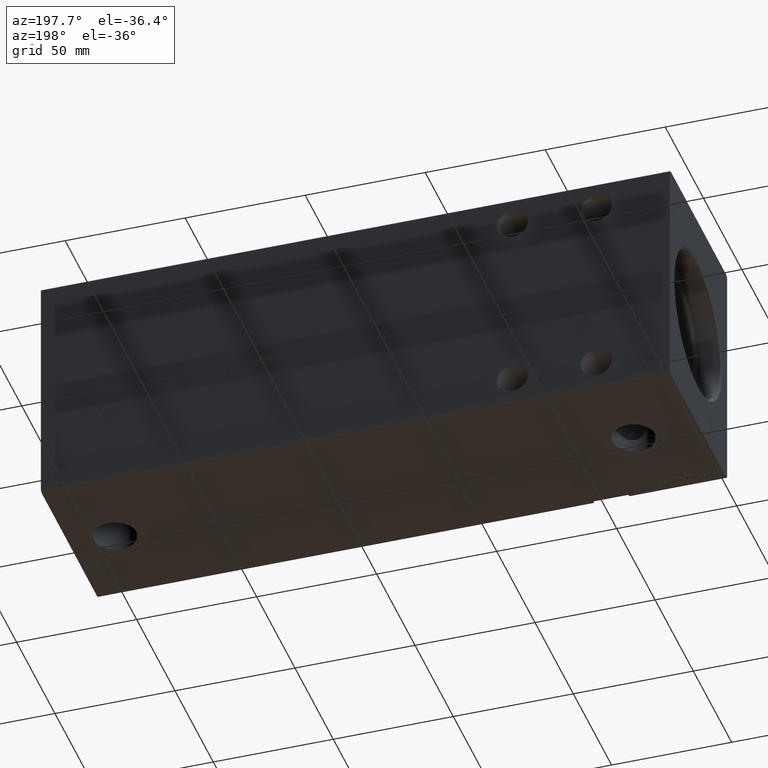
[diagram: clean part render]
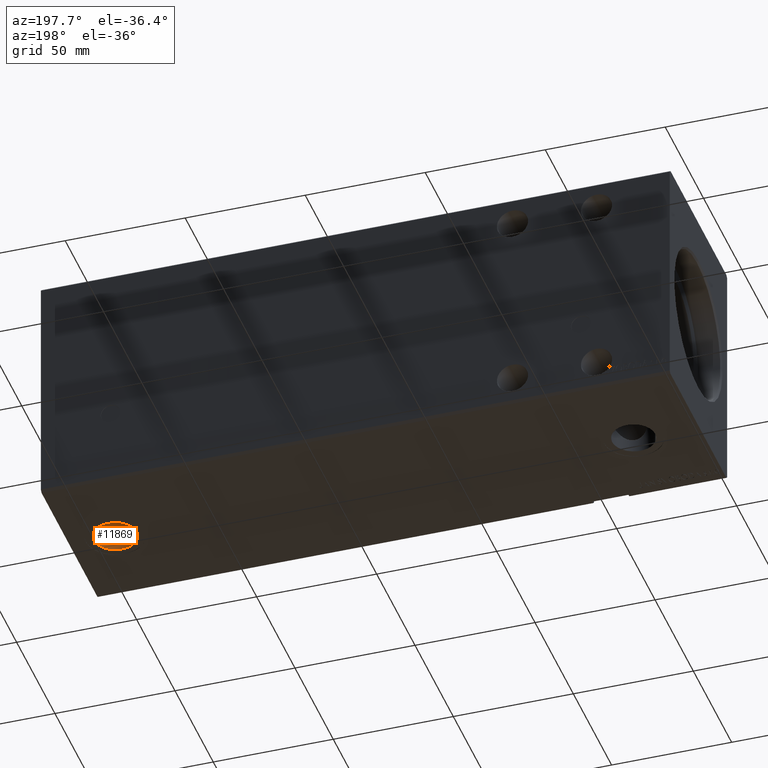
[diagram: same view with one face highlighted and labeled with its STEP entity id]
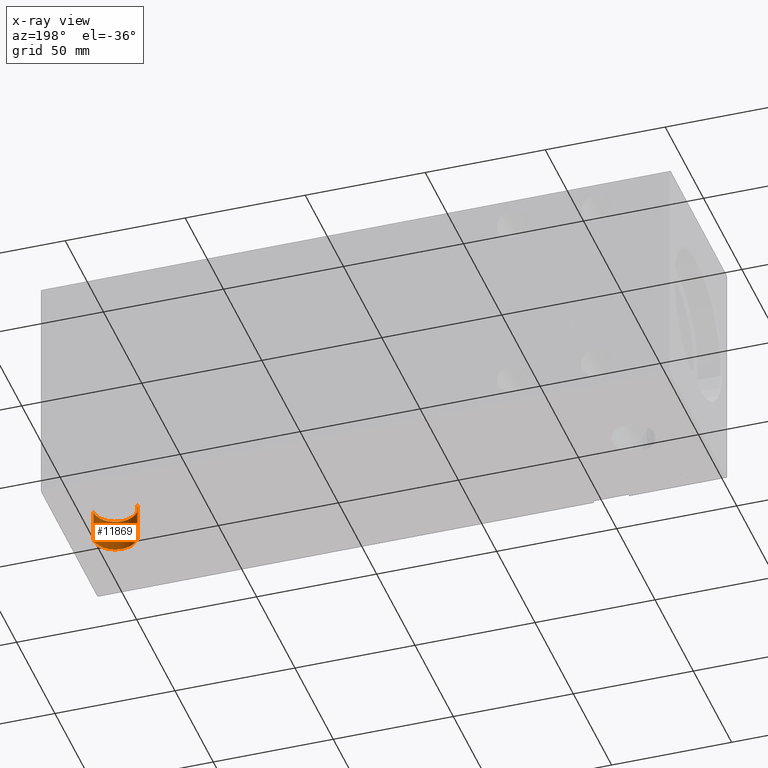
[diagram: x-ray of the same camera — body ghosted, the highlighted face saturated]
A machine part, auxiliary view. The second image highlights one B-rep face of the part: STEP entity #11869.
The next image is the same camera in x-ray: the body ghosted, the highlighted face saturated — about 0% of this face is hidden behind the body in this view.
In plain terms, the highlighted cylindrical surface (edge-blend (fillet) strip) has radius 9 mm, axis along (-0, -0, -1).
Its self-contained STEP definition (entity closure, byte-faithful):
#457 = CARTESIAN_POINT ( 'NONE',  ( 234.0000000000000000, -2.725862270335951630E-14, -49.89999999999999858 ) ) ;
#1150 = CIRCLE ( 'NONE', #23669, 9.000000000000007105 ) ;
#1620 = EDGE_CURVE ( 'NONE', #15202, #11227, #40429, .T. ) ;
#2048 = VECTOR ( 'NONE', #22162, 1000.000000000000000 ) ;
#5949 = FACE_OUTER_BOUND ( 'NONE', #8165, .T. ) ;
#6618 = CARTESIAN_POINT ( 'NONE',  ( 234.0000000000000000, -2.725862270335951630E-14, -36.29999999999999716 ) ) ;
#8165 = EDGE_LOOP ( 'NONE', ( #8746, #33186, #25940, #15119 ) ) ;
#8722 = DIRECTION ( 'NONE',  ( 0.000000000000000000, 0.000000000000000000, -1.000000000000000000 ) ) ;
#8746 = ORIENTED_EDGE ( 'NONE', *, *, #35328, .F. ) ;
#9579 = CIRCLE ( 'NONE', #18193, 9.000000000000007105 ) ;
#10288 = VECTOR ( 'NONE', #38987, 1000.000000000000000 ) ;
#11227 = VERTEX_POINT ( 'NONE', #457 ) ;
#11869 = ADVANCED_FACE ( 'NONE', ( #5949 ), #34550, .F. ) ;
#12227 = CARTESIAN_POINT ( 'NONE',  ( 234.0000000000000000, -2.725862270335951630E-14, -36.29999999999999716 ) ) ;
#12991 = DIRECTION ( 'NONE',  ( -1.000000000000000000, 0.000000000000000000, 0.000000000000000000 ) ) ;
#15119 = ORIENTED_EDGE ( 'NONE', *, *, #1620, .F. ) ;
#15202 = VERTEX_POINT ( 'NONE', #12227 ) ;
#16818 = CARTESIAN_POINT ( 'NONE',  ( 252.0000000000000568, -2.615644058412689681E-14, -36.29999999999999716 ) ) ;
#18193 = AXIS2_PLACEMENT_3D ( 'NONE', #19146, #31992, #38215 ) ;
#18595 = DIRECTION ( 'NONE',  ( -0.000000000000000000, -0.000000000000000000, -1.000000000000000000 ) ) ;
#19146 = CARTESIAN_POINT ( 'NONE',  ( 243.0000000000000284, -2.725862270335951630E-14, -36.29999999999999716 ) ) ;
#19891 = VERTEX_POINT ( 'NONE', #39417 ) ;
#20108 = EDGE_CURVE ( 'NONE', #31628, #11227, #1150, .T. ) ;
#20120 = LINE ( 'NONE', #16818, #10288 ) ;
#21463 = AXIS2_PLACEMENT_3D ( 'NONE', #37869, #18595, #12991 ) ;
#22162 = DIRECTION ( 'NONE',  ( -0.000000000000000000, -0.000000000000000000, -1.000000000000000000 ) ) ;
#22578 = DIRECTION ( 'NONE',  ( -1.000000000000000000, 0.000000000000000000, 0.000000000000000000 ) ) ;
#23669 = AXIS2_PLACEMENT_3D ( 'NONE', #31114, #8722, #22578 ) ;
#25940 = ORIENTED_EDGE ( 'NONE', *, *, #20108, .T. ) ;
#31114 = CARTESIAN_POINT ( 'NONE',  ( 243.0000000000000284, -2.725862270335951630E-14, -49.89999999999999858 ) ) ;
#31628 = VERTEX_POINT ( 'NONE', #38444 ) ;
#31992 = DIRECTION ( 'NONE',  ( 0.000000000000000000, 0.000000000000000000, -1.000000000000000000 ) ) ;
#33186 = ORIENTED_EDGE ( 'NONE', *, *, #36534, .T. ) ;
#34550 = CYLINDRICAL_SURFACE ( 'NONE', #21463, 9.000000000000007105 ) ;
#35328 = EDGE_CURVE ( 'NONE', #19891, #15202, #9579, .T. ) ;
#36534 = EDGE_CURVE ( 'NONE', #19891, #31628, #20120, .T. ) ;
#37869 = CARTESIAN_POINT ( 'NONE',  ( 243.0000000000000284, -2.725862270335951630E-14, -36.29999999999999716 ) ) ;
#38215 = DIRECTION ( 'NONE',  ( -1.000000000000000000, 0.000000000000000000, 0.000000000000000000 ) ) ;
#38444 = CARTESIAN_POINT ( 'NONE',  ( 252.0000000000000568, -2.615644058412689997E-14, -49.89999999999999858 ) ) ;
#38987 = DIRECTION ( 'NONE',  ( -0.000000000000000000, -0.000000000000000000, -1.000000000000000000 ) ) ;
#39417 = CARTESIAN_POINT ( 'NONE',  ( 252.0000000000000568, -2.615644058412689997E-14, -36.29999999999999716 ) ) ;
#40429 = LINE ( 'NONE', #6618, #2048 ) ;